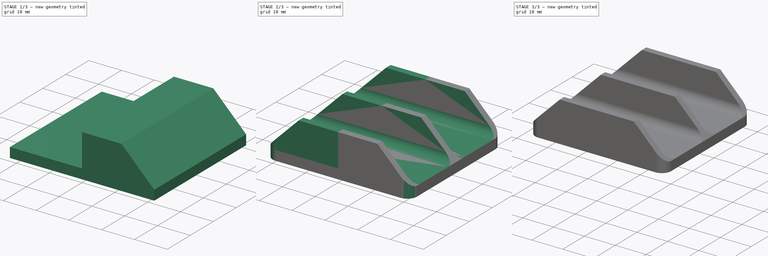
[diagram: build sequence overview — one tinted view per stage of 3, left to right]
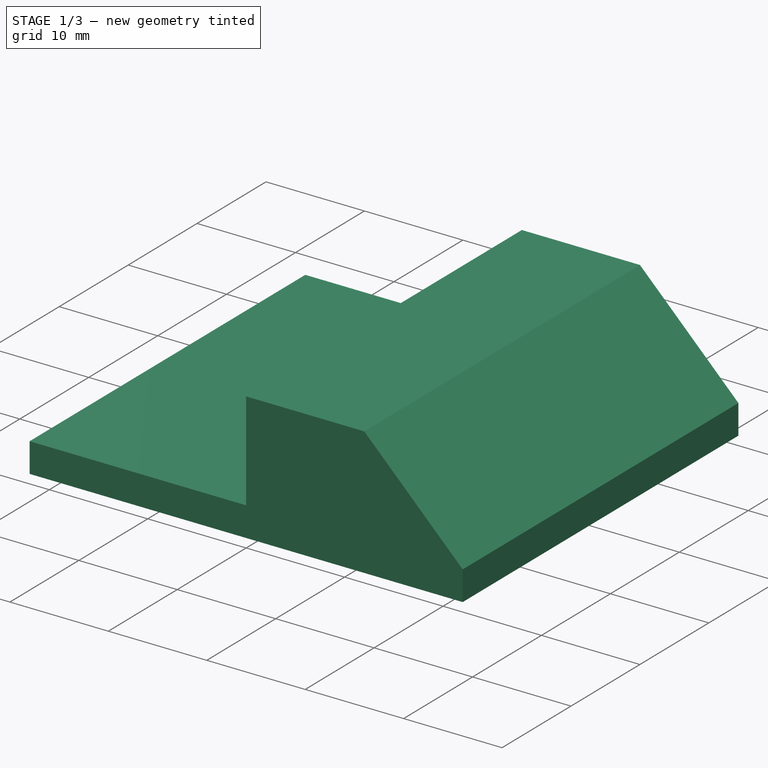
[diagram: stage 1 of 3 — iso view after this stage's code; geometry added in this stage tinted green]
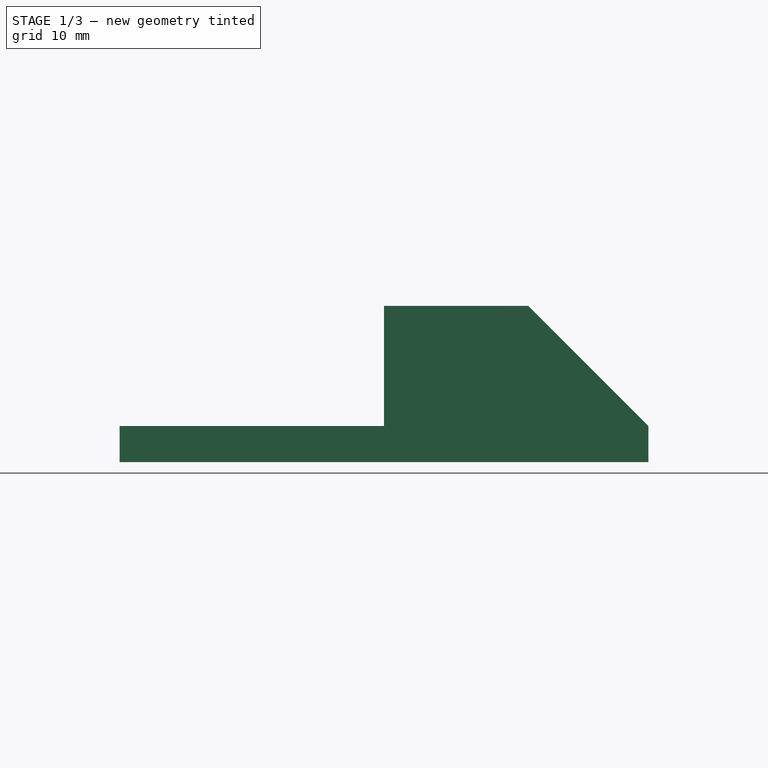
[diagram: stage 1 of 3 — front view after this stage's code; geometry added in this stage tinted green]
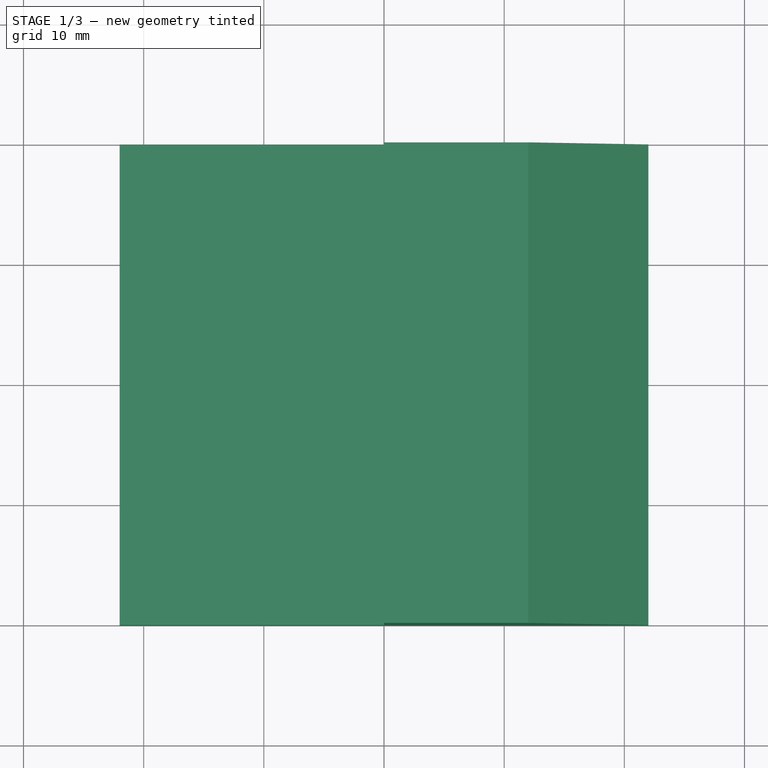
[diagram: stage 1 of 3 — top view after this stage's code; geometry added in this stage tinted green]
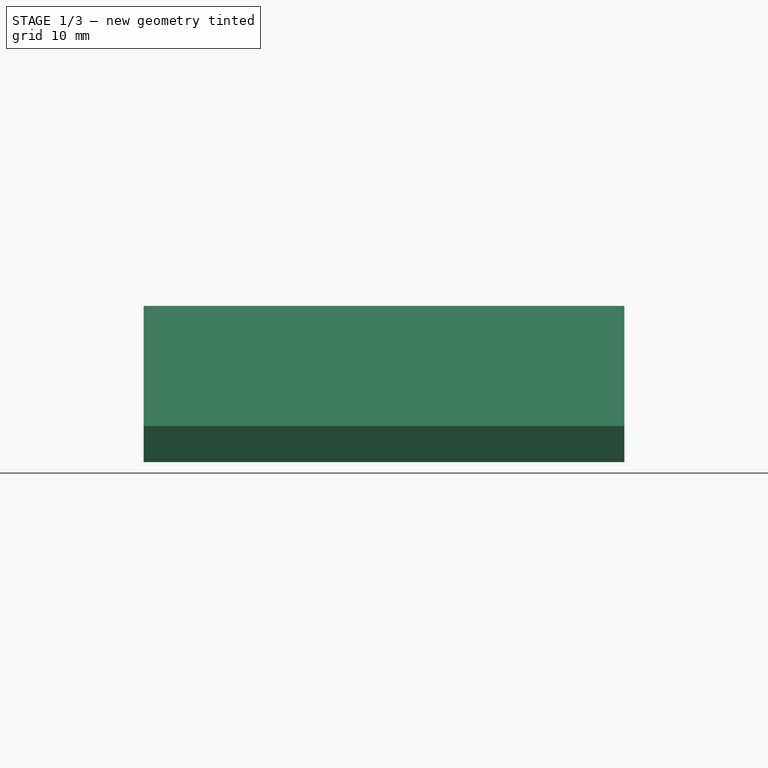
[diagram: stage 1 of 3 — right view after this stage's code; geometry added in this stage tinted green]
FCSTD DOCUMENT  (FreeCAD 0.20R29177 +426 (Git))
Label: EndStopRear
License: All rights reserved
LicenseURL: http://en.wikipedia.org/wiki/All_rights_reserved
objects: Sketcher::SketchObject×5, App::DocumentObjectGroup×4, PartDesign::Pad×2, Part::FeaturePython×2, PartDesign::Pocket×2, PartDesign::CoordinateSystem×1, App::FeaturePython×1, PartDesign::Mirrored×1, PartDesign::Hole×1, PartDesign::Body×1, App::Part×1
note: 20 computed .brp shape members not serialized (recipe doc carries the construction recipe); baked Part::Feature solids carry a one-line shape summary decoded from their .brp

FEATURE [App::DocumentObjectGroup] Parts
FEATURE [PartDesign::CoordinateSystem] LCS_Origin
  AttacherType = Attacher::AttachEngine3D
  MapMode = 2
  Support = -> [X_Axis]
FEATURE [App::FeaturePython] Variables  # WARN: FeaturePython — macro-defined, semantics opaque (R4)
  Type = App::PropertyContainer
FEATURE [App::DocumentObjectGroup] Constraints
FEATURE [App::DocumentObjectGroup] Configurations
FEATURE [Sketcher::SketchObject] Sketch
  FullyConstrained = true
  MapMode = 5
  Support = -> [XY_Plane001]
  sketch-geometry (5):
    g0: LineSegment StartX=-22 StartY=-20 StartZ=0 EndX=-22 EndY=20 EndZ=0
    g1: LineSegment StartX=-22 StartY=20 StartZ=0 EndX=22 EndY=20 EndZ=0
    g2: LineSegment StartX=22 StartY=20 StartZ=0 EndX=22 EndY=-20 EndZ=0
    g3: LineSegment StartX=22 StartY=-20 StartZ=0 EndX=-22 EndY=-20 EndZ=0
    g4: GeomPoint X=0 Y=0 Z=0
  constraints (12):
    c: Coincident(g0,g1)
    c: Coincident(g1,g2)
    c: Coincident(g2,g3)
    c: Coincident(g3,g0)
    c: Horizontal(g1)
    c: Horizontal(g3)
    c: Vertical(g0)
    c: Vertical(g2)
    c: Symmetric(g1,g0,g4)
    c: Coincident(g4,g-1)
    c: DistanceY(g2,g2) = 40  'Height'
    c: DistanceX(g1,g1) = 44  'Width'
FEATURE [PartDesign::Pad] Pad
  Direction = (0,0,1)
  Length = 3
  Length2 = 10
  Profile = -> Sketch
  ReferenceAxis = -> Sketch [N_Axis]
  Type = 0
FEATURE [Sketcher::SketchObject] Sketch001
  AttachmentOffset = pos=(0,0,4) rot=(0,0,1;0rad)
  FullyConstrained = true
  MapMode = 5
  Placement = pos=(0,0,4) rot=(0,0,1;0rad)
  Support = -> [XY_Plane001]
  expr: .AttachmentOffset.Base.z = <<Pad>>.Length + 1mm
  sketch-geometry (2):
    g0: Circle CenterX=0 CenterY=10 CenterZ=0 NormalX=0 NormalY=0 NormalZ=1 AngleXU=0 Radius=1
    g1: Circle CenterX=0 CenterY=-10 CenterZ=0 NormalX=0 NormalY=0 NormalZ=1 AngleXU=0 Radius=1
  constraints (5):
    c: PointOnObject(g0,g-2)
    c: Equal(g0,g1)
    c: Diameter(g0) = 2
    c: Symmetric(g1,g0,g-1)
    c: DistanceY(g1,g0) = 20
FEATURE [Sketcher::SketchObject] Sketch002
  AttachmentOffset = pos=(0,3,0) rot=(0,0,1;0rad)
  FullyConstrained = true
  MapMode = 5
  Placement = pos=(0,-7e-16,3) rot=(1,0,0;1.5708rad)
  Support = -> [XZ_Plane001]
  expr: .AttachmentOffset.Base.y = <<Pad>>.Length
  expr: Constraints[9] = Sketch.Constraints.Width / 2
  sketch-geometry (4):
    g0: LineSegment StartX=0 StartY=10 StartZ=0 EndX=12 EndY=10 EndZ=0
    g1: LineSegment StartX=12 StartY=10 StartZ=0 EndX=22 EndY=0 EndZ=0
    g2: LineSegment StartX=22 StartY=0 StartZ=0 EndX=0 EndY=0 EndZ=0
    g3: LineSegment StartX=0 StartY=0 StartZ=0 EndX=0 EndY=10 EndZ=0
  constraints (11):
    c: PointOnObject(g0,g-2)
    c: Horizontal(g0)
    c: Coincident(g0,g1)
    c: PointOnObject(g1,g-1)
    c: Coincident(g1,g2)
    c: Coincident(g2,g-1)
    c: Coincident(g2,g3)
    c: Coincident(g3,g0)
    c: DistanceY(g3,g3) = 10
    c: DistanceX(g2,g2) = 22
    c: Angle(g1,g2) = 0.785398
FEATURE [PartDesign::Pad] Pad001  label="Rib"
  BaseFeature = -> Pad
  Direction = (0,-1,-2e-16)
  Length = 40
  Length2 = 10
  Midplane = true
  Profile = -> Sketch002
  ReferenceAxis = -> Sketch002 [N_Axis]
  Type = 0
  expr: Length = Sketch.Constraints.Height
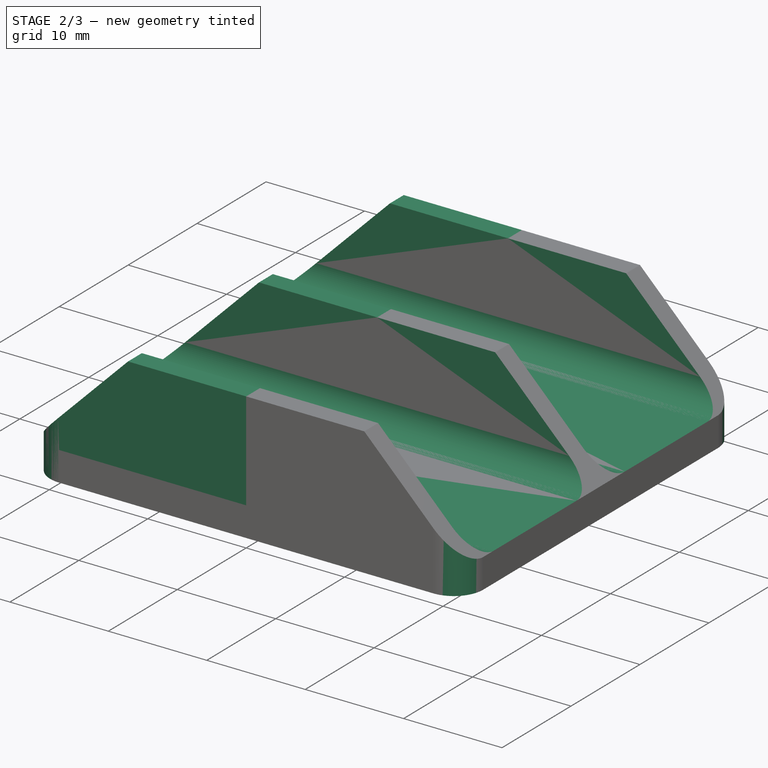
[diagram: stage 2 of 3 — iso view after this stage's code; geometry added in this stage tinted green]
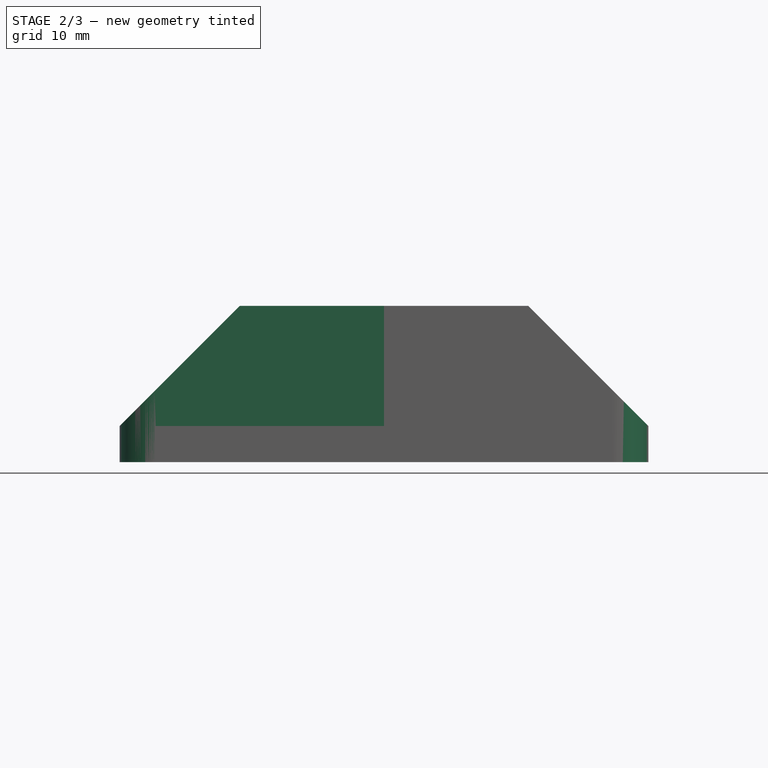
[diagram: stage 2 of 3 — front view after this stage's code; geometry added in this stage tinted green]
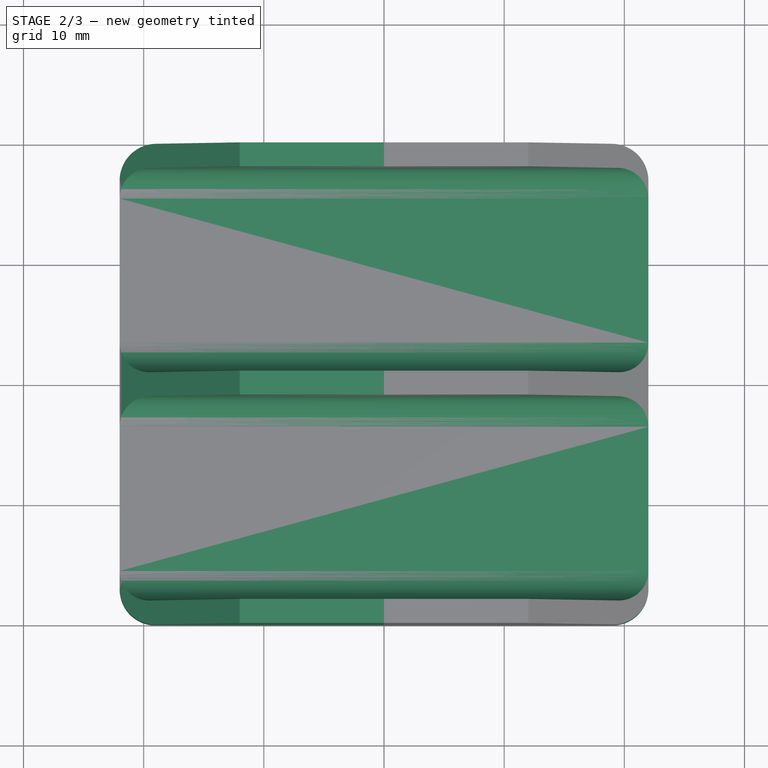
[diagram: stage 2 of 3 — top view after this stage's code; geometry added in this stage tinted green]
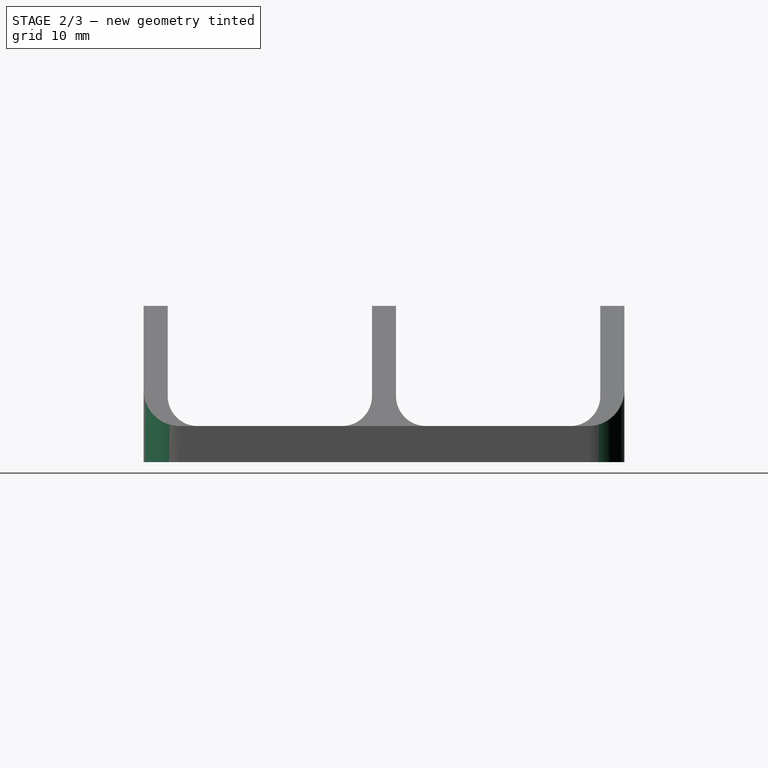
[diagram: stage 2 of 3 — right view after this stage's code; geometry added in this stage tinted green]
FEATURE [Part::FeaturePython] Array_Screw  label="Array_M5x16-Screw"  # Draft array (typed FeaturePython)
  ArraySteps = 0
  ArrayType = Circular Array
  Axis = LCS_Origin.Z
  Count = 2
  ElementCount = 2
  FullAngle = 360
  IntervalAngle = 180
  LinearSteps = 0
  PlacementList = 2 placements: [(0,10,3.5),(-1.22465e-15,-10,3.5)]
  ScaleList = (2) [(1,1,1),(1,1,1)]
  ShowElement = false
  SourceObject = -> Screw
FEATURE [App::DocumentObjectGroup] Fasteners
  Group = -> [Screw,Array_Screw]
FEATURE [PartDesign::Mirrored] Mirrored  label="RibMirror"
  BaseFeature = -> Pad001
  MirrorPlane = -> Sketch002 [V_Axis]
  Originals = -> [Pad001]
FEATURE [PartDesign::Pocket] Pocket  label="RibGap"
  BaseFeature = -> Mirrored
  Direction = (-1,2e-16,-3e-16)
  Length = 5
  Length2 = 5
  Midplane = true
  Profile = -> Sketch003
  ReferenceAxis = -> Sketch003 [N_Axis]
  Type = 1
FEATURE [Sketcher::SketchObject] Sketch004
  FullyConstrained = true
  MapMode = 5
  Support = -> [XY_Plane001]
  sketch-geometry (15):
    g0: ArcOfCircle CenterX=-19 CenterY=17 CenterZ=0 NormalX=0 NormalY=0 NormalZ=1 AngleXU=0 Radius=3 StartAngle=1.5708 EndAngle=3.14159
    g1: LineSegment StartX=-19 StartY=20 StartZ=0 EndX=19 EndY=20 EndZ=0
    g2: ArcOfCircle CenterX=19 CenterY=17 CenterZ=0 NormalX=0 NormalY=0 NormalZ=1 AngleXU=0 Radius=3 StartAngle=3e-16 EndAngle=1.5708
    g3: LineSegment StartX=22 StartY=17 StartZ=0 EndX=22 EndY=-17 EndZ=0
    g4: ArcOfCircle CenterX=19 CenterY=-17 CenterZ=0 NormalX=0 NormalY=0 NormalZ=1 AngleXU=0 Radius=3 StartAngle=4.71239 EndAngle=6.28319
    g5: LineSegment StartX=19 StartY=-20 StartZ=0 EndX=-19 EndY=-20 EndZ=0
    g6: ArcOfCircle CenterX=-19 CenterY=-17 CenterZ=0 NormalX=0 NormalY=0 NormalZ=1 AngleXU=0 Radius=3 StartAngle=3.14159 EndAngle=4.71239
    g7: LineSegment StartX=-22 StartY=-17 StartZ=0 EndX=-22 EndY=17 EndZ=0
    g8: GeomPoint X=-22 Y=20 Z=0
    g9: GeomPoint X=22 Y=-20 Z=0
    g10: LineSegment StartX=23 StartY=-21 StartZ=0 EndX=23 EndY=21 EndZ=0
    g11: LineSegment StartX=23 StartY=21 StartZ=0 EndX=-23 EndY=21 EndZ=0
    g12: LineSegment StartX=-23 StartY=21 StartZ=0 EndX=-23 EndY=-21 EndZ=0
    g13: LineSegment StartX=-23 StartY=-21 StartZ=0 EndX=23 EndY=-21 EndZ=0
    g14: GeomPoint X=0 Y=0 Z=0
  constraints (35):
    c: Tangent(g0,g1) = 1.5708
    c: Tangent(g1,g2) = 1.5708
    c: Tangent(g2,g3) = 1.5708
    c: Tangent(g3,g4) = 1.5708
    c: Tangent(g4,g5) = 1.5708
    c: Tangent(g5,g6) = 1.5708
    c: Tangent(g6,g7) = 1.5708
    c: Tangent(g7,g0) = 1.5708
    c: Horizontal(g1)
    c: Horizontal(g5)
    c: Vertical(g3)
    c: Vertical(g7)
    c: Equal(g0,g2)
    c: Equal(g2,g4)
    c: Equal(g4,g6)
    c: PointOnObject(g8,g1)
    c: PointOnObject(g8,g7)
    c: PointOnObject(g9,g3)
    c: PointOnObject(g9,g5)
    c: Symmetric(g4,g0,g-1)
    c: Radius(g2) = 3
    c: DistanceY(g4,g1) = 40  'Height'
    c: DistanceX(g6,g3) = 44  'Width'
    c: Coincident(g10,g11)
    c: Coincident(g11,g12)
    c: Coincident(g12,g13)
    c: Coincident(g13,g10)
    c: Horizontal(g11)
    c: Horizontal(g13)
    c: Vertical(g10)
    c: Vertical(g12)
    c: Symmetric(g11,g10,g14)
    c: Coincident(g14,g-1)
    c: DistanceY(g0,g11) = 1
    c: DistanceX(g12,g6) = 1
FEATURE [PartDesign::Pocket] Pocket001  label="CornerFillets"
  BaseFeature = -> Pocket
  Direction = (0,0,-1)
  Length = 5
  Length2 = 5
  Midplane = true
  Profile = -> Sketch004
  ReferenceAxis = -> Sketch004 [N_Axis]
  Type = 1
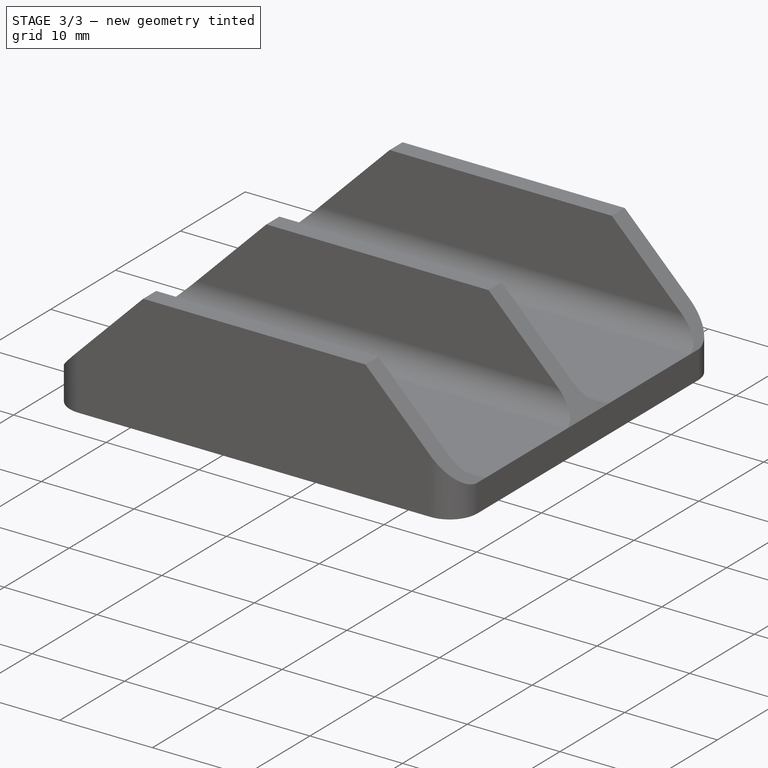
[diagram: stage 3 of 3 — iso view after this stage's code; geometry added in this stage tinted green]
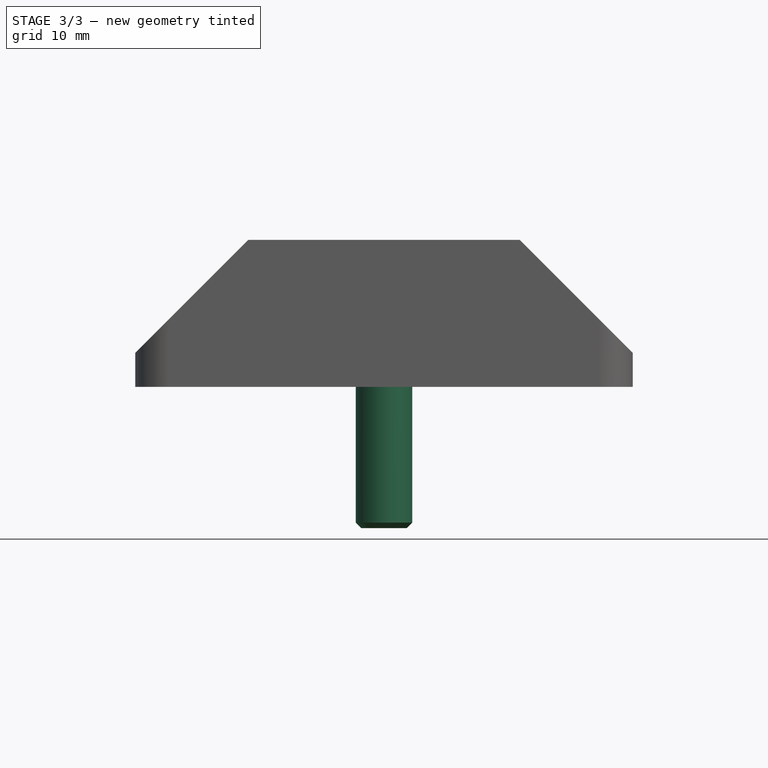
[diagram: stage 3 of 3 — front view after this stage's code; geometry added in this stage tinted green]
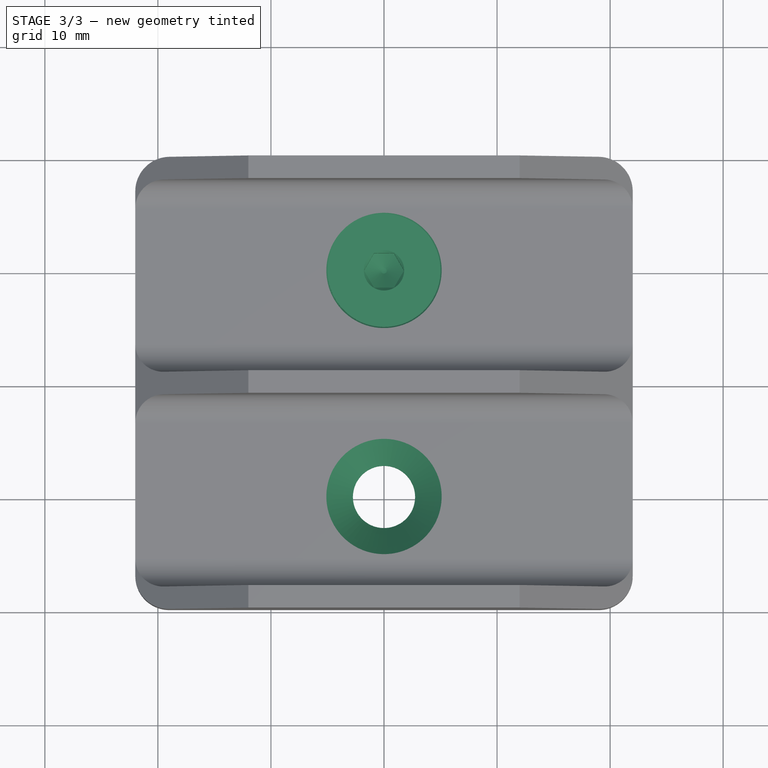
[diagram: stage 3 of 3 — top view after this stage's code; geometry added in this stage tinted green]
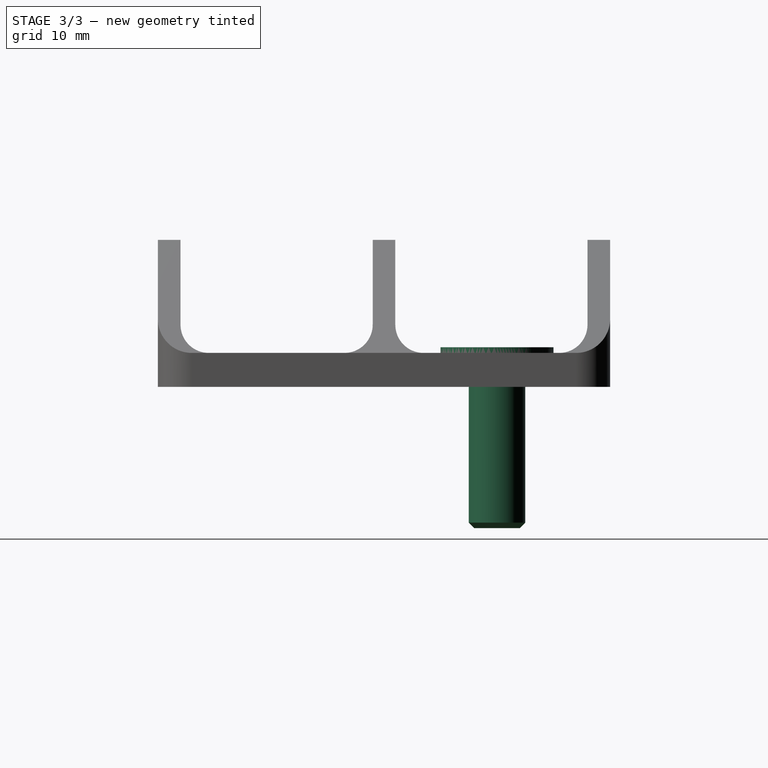
[diagram: stage 3 of 3 — right view after this stage's code; geometry added in this stage tinted green]
FEATURE [Sketcher::SketchObject] Sketch003
  AttachmentOffset = pos=(0,3,0) rot=(0,0,1;0rad)
  FullyConstrained = true
  MapMode = 5
  Placement = pos=(-7e-16,7e-16,3) rot=(0.57735,0.57735,0.57735;2.0944rad)
  Support = -> [YZ_Plane001]
  expr: .AttachmentOffset.Base.y = <<Pad>>.Length
  expr: Constraints[27] = Sketch.Constraints.Height
  sketch-geometry (21):
    g0: LineSegment StartX=-18 StartY=40 StartZ=0 EndX=-18 EndY=2.5 EndZ=0
    g1: LineSegment StartX=-15.5 StartY=0 StartZ=0 EndX=-3.5 EndY=0 EndZ=0
    g2: LineSegment StartX=-1 StartY=2.5 StartZ=0 EndX=-1 EndY=40 EndZ=0
    g3: LineSegment StartX=-1 StartY=40 StartZ=0 EndX=-18 EndY=40 EndZ=0
    g4: GeomPoint X=-9.5 Y=20 Z=0
    g5: LineSegment StartX=18 StartY=40 StartZ=0 EndX=18 EndY=2.5 EndZ=0
    g6: LineSegment StartX=15.5 StartY=0 StartZ=0 EndX=3.5 EndY=0 EndZ=0
    g7: LineSegment StartX=1 StartY=2.5 StartZ=0 EndX=1 EndY=40 EndZ=0
    g8: LineSegment StartX=1 StartY=40 StartZ=0 EndX=18 EndY=40 EndZ=0
    g9: GeomPoint X=9.5 Y=20 Z=0
    g10: LineSegment StartX=-18 StartY=0 StartZ=0 EndX=-20 EndY=0 EndZ=0
    g11: LineSegment StartX=18 StartY=0 StartZ=0 EndX=20 EndY=0 EndZ=0
    g12: LineSegment StartX=-1 StartY=0 StartZ=0 EndX=1 EndY=0 EndZ=0
    g13: ArcOfCircle CenterX=15.5 CenterY=2.5 CenterZ=0 NormalX=0 NormalY=0 NormalZ=1 AngleXU=0 Radius=2.5 StartAngle=4.71239 EndAngle=6.28319
    g14: GeomPoint X=18 Y=0 Z=0
    g15: ArcOfCircle CenterX=3.5 CenterY=2.5 CenterZ=0 NormalX=0 NormalY=0 NormalZ=1 AngleXU=0 Radius=2.5 StartAngle=3.14159 EndAngle=4.71239
    g16: GeomPoint X=1 Y=0 Z=0
    g17: ArcOfCircle CenterX=-3.5 CenterY=2.5 CenterZ=0 NormalX=0 NormalY=0 NormalZ=1 AngleXU=0 Radius=2.5 StartAngle=4.71239 EndAngle=6.28319
    g18: GeomPoint X=-1 Y=0 Z=0
    g19: ArcOfCircle CenterX=-15.5 CenterY=2.5 CenterZ=0 NormalX=0 NormalY=0 NormalZ=1 AngleXU=0 Radius=2.5 StartAngle=3.14159 EndAngle=4.71239
    g20: GeomPoint X=-18 Y=0 Z=0
  constraints (49):
    c: Coincident(g2,g3)
    c: Coincident(g3,g0)
    c: Horizontal(g1)
    c: Horizontal(g3)
    c: Vertical(g0)
    c: Vertical(g2)
    c: Symmetric(g18,g0,g4)
    c: PointOnObject(g18,g-1)
    c: DistanceY(g18,g2) = 40
    c: Coincident(g7,g8)
    c: Coincident(g8,g5)
    c: Horizontal(g6)
    c: Horizontal(g8)
    c: Vertical(g5)
    c: Vertical(g7)
    c: Symmetric(g16,g5,g9)
    c: Equal(g8,g3)
    c: Symmetric(g18,g16,g-1)
    c: Coincident(g10,g20)
    c: PointOnObject(g10,g-1)
    c: Coincident(g11,g14)
    c: PointOnObject(g11,g-1)
    c: Equal(g11,g10)
    c: Coincident(g12,g18)
    c: Coincident(g12,g16)
    c: Equal(g11,g12)
    c: DistanceX(g11,g11) = 2
    c: DistanceX(g10,g11) = 40
    c: PointOnObject(g14,g5)
    c: PointOnObject(g14,g6)
    c: Tangent(g5,g13) = 1.5708
    c: Tangent(g6,g13) = 1.5708
    c: PointOnObject(g16,g6)
    c: PointOnObject(g16,g7)
    c: Tangent(g6,g15) = 1.5708
    c: Tangent(g7,g15) = 1.5708
    c: Equal(g13,g15)
    c: PointOnObject(g18,g2)
    c: PointOnObject(g18,g1)
    c: Tangent(g2,g17) = -1.5708
    c: Tangent(g1,g17) = -1.5708
    c: PointOnObject(g20,g1)
    c: PointOnObject(g20,g0)
    c: Tangent(g1,g19) = -1.5708
    c: Tangent(g0,g19) = -1.5708
    c: Equal(g17,g19)
    c: Equal(g19,g15)
    c: Radius(g13) = 2.5
    c: PointOnObject(g2,g8)
FEATURE [Part::FeaturePython] Screw  label="M5x16-Screw"  # Fasteners workbench fastener (typed FeaturePython)
  Placement = pos=(0,10,3.5) rot=(0,0,1;0rad)
  baseObject = -> Sketch001 [Edge1]
  diameter = 5
  invert = false
  leftHanded = false
  length = 3
  lengthCustom = 16
  matchOuter = false
  offset = -0.5
  thread = false
  type = 18
FEATURE [PartDesign::Hole] Hole  label="MountHoles"
  BaseFeature = -> Pocket001
  CustomThreadClearance = 0
  Depth = 25
  DepthType = 0
  Diameter = 5.5
  DrillForDepth = false
  DrillPoint = 1
  DrillPointAngle = 118
  HoleCutCountersinkAngle = 90
  HoleCutCustomValues = false
  HoleCutDepth = 0
  HoleCutDiameter = 12.2
  HoleCutType = 7
  ModelThread = false
  Profile = -> Sketch001
  Tapered = false
  TaperedAngle = 90
  ThreadClass = 0
  ThreadDepth = 25
  ThreadDepthType = 0
  ThreadDirection = 0
  ThreadFit = 0
  ThreadSize = 13
  ThreadType = 1
  Threaded = false
  UseCustomThreadClearance = false
FEATURE [PartDesign::Body] Body
  Group = -> [Sketch,Pad,Sketch001,Sketch002,Pad001,Sketch003,Mirrored,Pocket,Sketch004,Pocket001,Hole]
  Origin = -> Origin001
  Tip = -> Hole
FEATURE [App::Part] Assembly
  AssemblyType = Part::Link
  Group = -> [LCS_Origin,Variables,Constraints,Configurations,Body,Fasteners,Screw,Array_Screw]
  Origin = -> Origin
  Type = Assembly
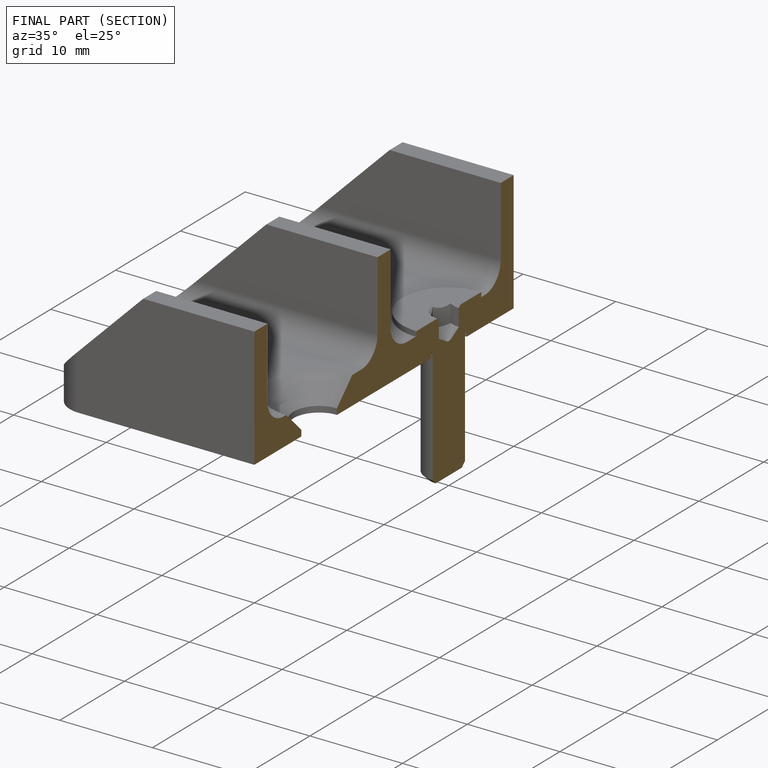
[diagram: finished part — half-section view (interior)]
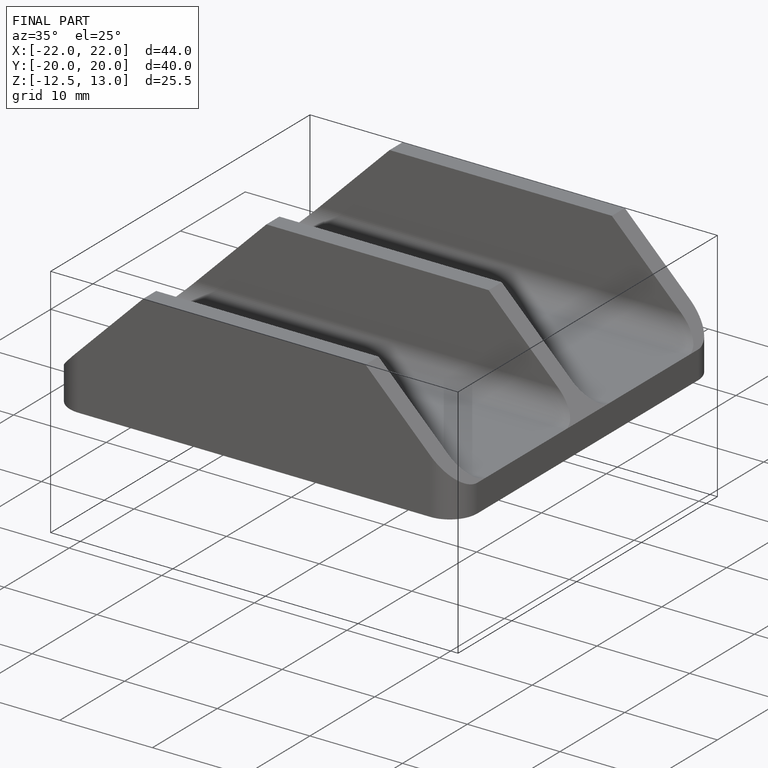
[diagram: finished part — iso view with bounding-box wireframe]
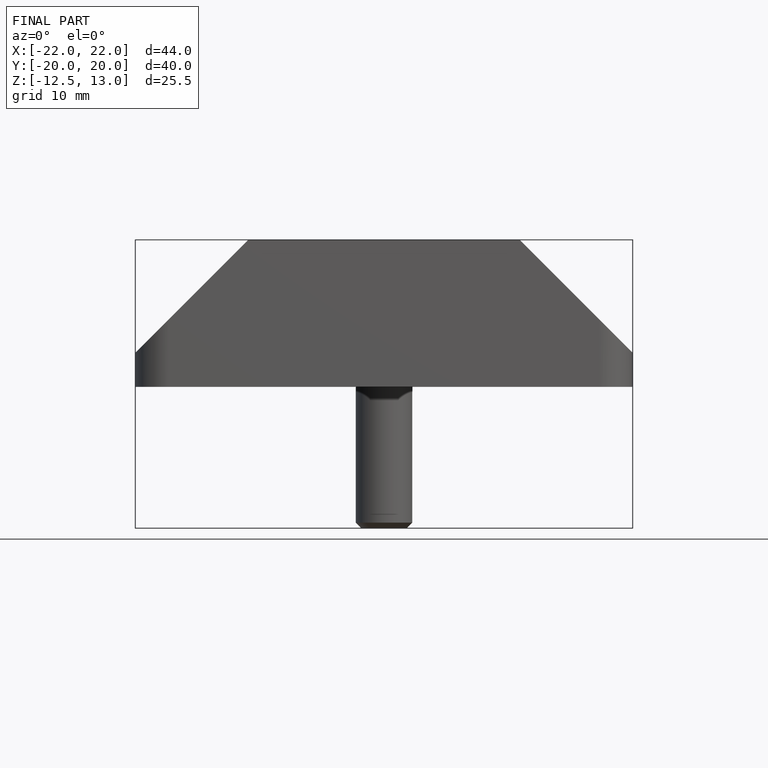
[diagram: finished part — front view with bounding-box wireframe]
